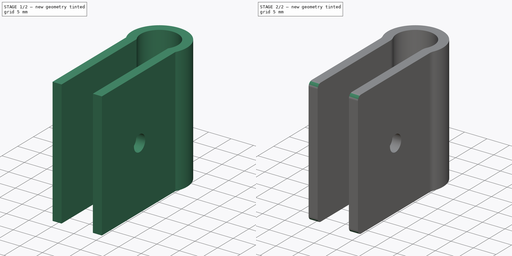
[diagram: build sequence overview — one tinted view per stage of 2, left to right]
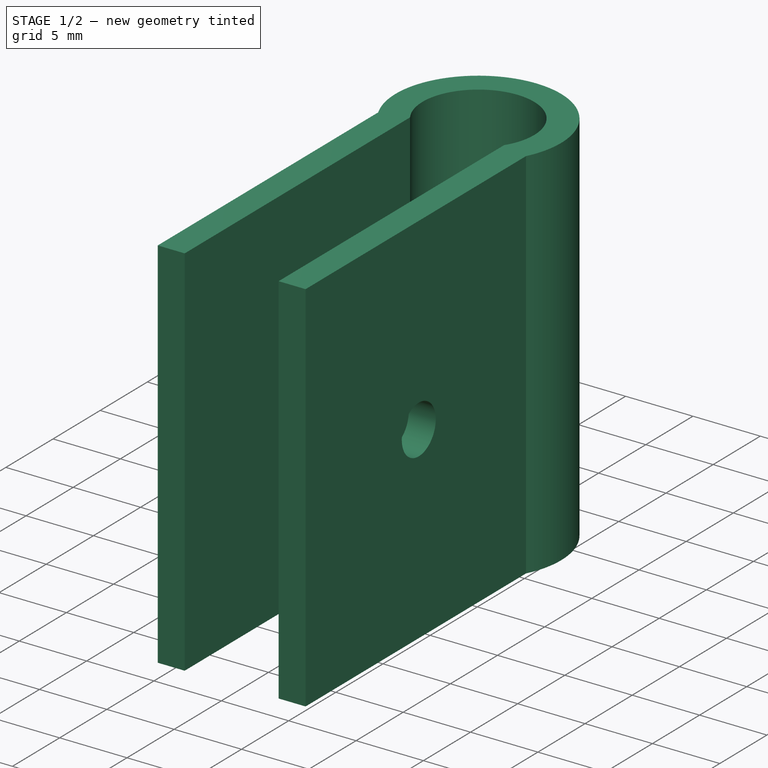
[diagram: stage 1 of 2 — iso view after this stage's code; geometry added in this stage tinted green]
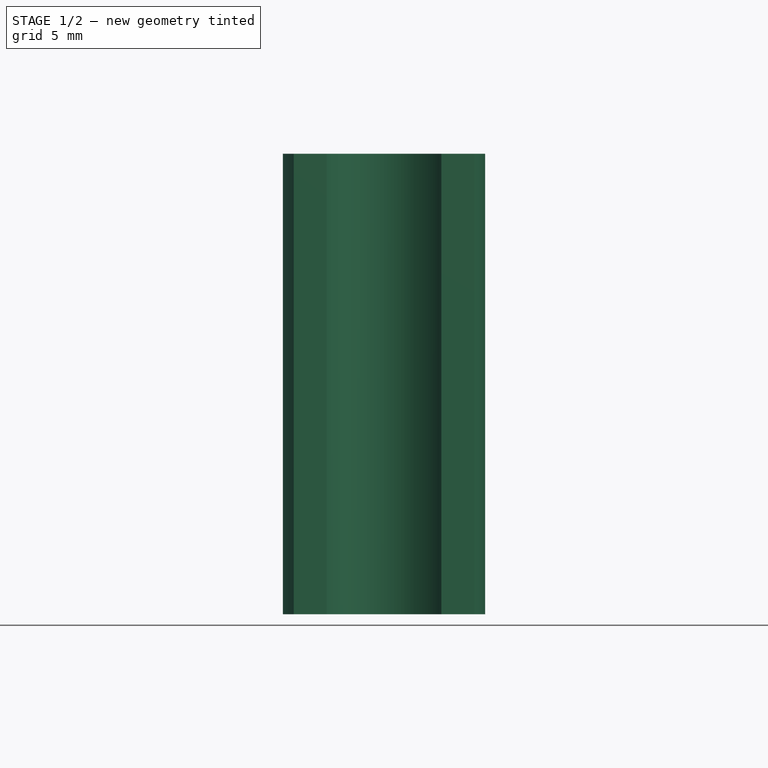
[diagram: stage 1 of 2 — front view after this stage's code; geometry added in this stage tinted green]
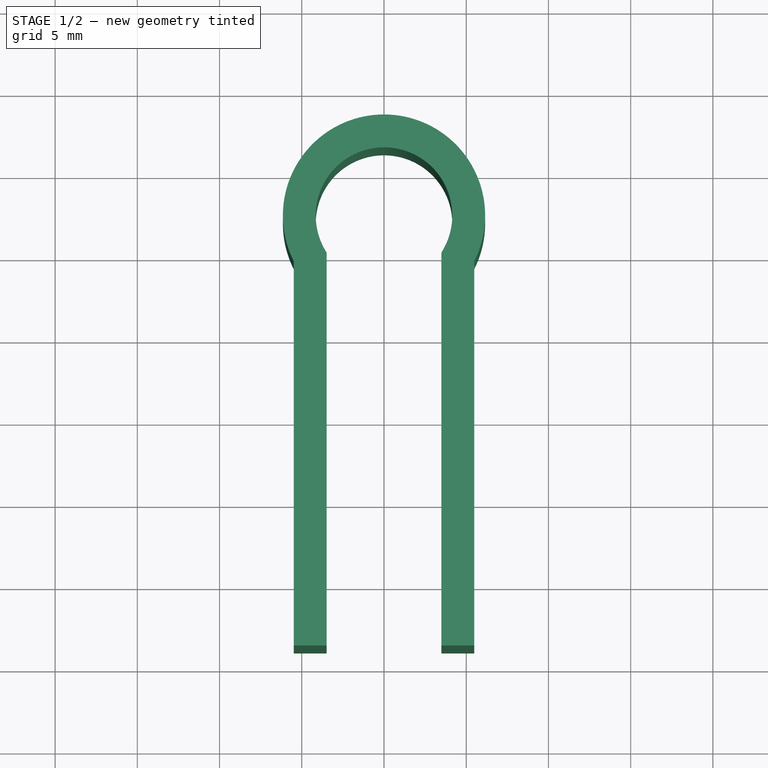
[diagram: stage 1 of 2 — top view after this stage's code; geometry added in this stage tinted green]
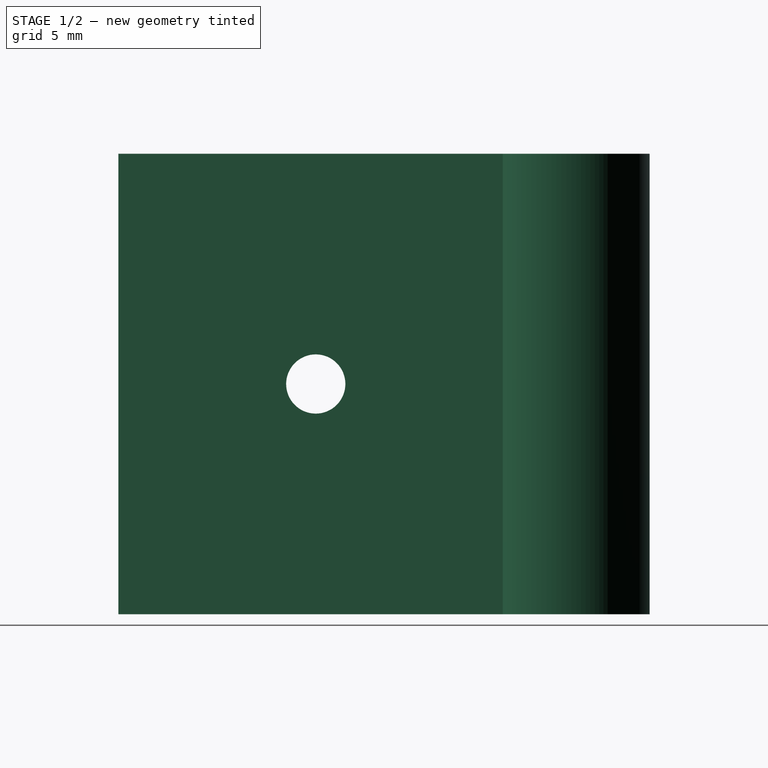
[diagram: stage 1 of 2 — right view after this stage's code; geometry added in this stage tinted green]
FCSTD DOCUMENT  (FreeCAD 0.18.3R)
Label: smoothrodclamp
License: All rights reserved
LicenseURL: http://en.wikipedia.org/wiki/All_rights_reserved
objects: Sketcher::SketchObject×2, PartDesign::Fillet×2, PartDesign::Pad×1, PartDesign::Pocket×1, PartDesign::Body×1, App::Part×1
note: 9 computed .brp shape members not serialized (recipe doc carries the construction recipe); baked Part::Feature solids carry a one-line shape summary decoded from their .brp

FEATURE [Sketcher::SketchObject] Sketch  label="clamp"
  MapMode = 5
  Support = -> [XY_Plane001]
  sketch-geometry (13):
    g0: ArcOfCircle CenterX=0 CenterY=2.25 CenterZ=0 NormalX=0 NormalY=0 NormalZ=1 AngleXU=0 Radius=4.15 StartAngle=5.71017 EndAngle=9.99779
    g1: ArcOfCircle CenterX=0 CenterY=2.25 CenterZ=0 NormalX=0 NormalY=0 NormalZ=1 AngleXU=0 Radius=6.15 StartAngle=5.81461 EndAngle=9.89335
    g2: LineSegment StartX=-5.48712 StartY=-0.527413 StartZ=0 EndX=-5.48712 EndY=-23.9 EndZ=0
    g3: LineSegment StartX=-5.48712 StartY=-23.9 StartZ=0 EndX=-3.48712 EndY=-23.9 EndZ=0
    g4: LineSegment StartX=-3.48712 StartY=-23.9 StartZ=0 EndX=-3.48712 EndY=0 EndZ=0
    g5: LineSegment StartX=3.48712 StartY=-4e-16 StartZ=0 EndX=3.48712 EndY=-23.9 EndZ=0
    g6: LineSegment StartX=3.48712 StartY=-23.9 StartZ=0 EndX=5.48712 EndY=-23.9 EndZ=0
    g7: LineSegment StartX=5.48712 StartY=-23.9 StartZ=0 EndX=5.48712 EndY=-0.527413 EndZ=0
    g8: LineSegment [constr] StartX=-3.48712 StartY=-23.9 StartZ=0 EndX=3.48712 EndY=-23.9 EndZ=0
    g9: ArcOfCircle [constr] CenterX=0 CenterY=2.25 CenterZ=0 NormalX=0 NormalY=0 NormalZ=1 AngleXU=0 Radius=4.15 StartAngle=3.71461 EndAngle=5.71017
    g10: LineSegment [constr] StartX=-3.48712 StartY=-1.9 StartZ=0 EndX=3.48712 EndY=-1.9 EndZ=0
    g11: LineSegment [constr] StartX=-3.48712 StartY=-11.9 StartZ=0 EndX=3.48712 EndY=-11.9 EndZ=0
    g12: LineSegment [constr] StartX=0 StartY=6.4 StartZ=0 EndX=0 EndY=8.4 EndZ=0
  constraints (44):
    c: PointOnObject(g0,g-2)
    c: PointOnObject(g0,g-1)
    c: PointOnObject(g0,g-1)
    c: Radius(g0) = 4.15
    c: Coincident(g1,g0)
    c: DistanceX(g0,g0) = 6.97424
    c: Coincident(g1,g2)
    c: Vertical(g2)
    c: Coincident(g2,g3)
    c: Horizontal(g3)
    c: Coincident(g3,g4)
    c: Coincident(g4,g0)
    c: Vertical(g4)
    c: Coincident(g0,g5)
    c: Vertical(g5)
    c: Coincident(g5,g6)
    c: Horizontal(g6)
    c: Coincident(g6,g7)
    c: Coincident(g7,g1)
    c: Vertical(g7)
    c: Coincident(g8,g3)
    c: Coincident(g8,g5)
    c: Horizontal(g8)
    c: PointOnObject(g10,g4)
    c: PointOnObject(g10,g5)
    c: Horizontal(g10)
    c: Tangent(g10,g9)
    c: DistanceY(g5,g10) = 22
    c: PointOnObject(g11,g4)
    c: Horizontal(g11)
    c: PointOnObject(g11,g5)
    c: DistanceY(g11,g10) = 10
    c: Coincident(g9,g0)
    c: Coincident(g0,g9)
    c: DistanceY(g-1,g0) = 2.25
    c: Equal(g9,g0)
    c: DistanceY(g11,g-1) = 11.9  'ScrewHoleOffset'
    c: PointOnObject(g12,g0)
    c: PointOnObject(g12,g1)
    c: Vertical(g12)
    c: PointOnObject(g12,g-2)
    c: Equal(g12,g3)
    c: Equal(g3,g6)
    c: DistanceY(g12,g12) = 2
FEATURE [PartDesign::Pad] Pad  label="clamp_"
  Length = 28
  Length2 = 100
  Profile = -> Sketch
  Type = 0
FEATURE [Sketcher::SketchObject] Sketch001
  MapMode = 5
  Placement = pos=(0,0,0) rot=(0.57735,0.57735,0.57735;2.0944rad)
  Support = -> [YZ_Plane001]
  expr: Constraints[2] = clamp_.Length / 2
  expr: Constraints[1] = Sketch.Constraints.ScrewHoleOffset
  expr: Constraints[0] = 1.8mm
  sketch-geometry (1):
    g0: Circle CenterX=-11.9 CenterY=14 CenterZ=0 NormalX=0 NormalY=0 NormalZ=1 AngleXU=0 Radius=1.8
  constraints (3):
    c: Radius(g0) = 1.8
    c: DistanceX(g0,g-1) = 11.9
    c: DistanceY(g-1,g0) = 14
FEATURE [PartDesign::Pocket] Pocket
  BaseFeature = -> Pad
  Length = 5
  Length2 = 100
  Midplane = true
  Profile = -> Sketch001
  Type = 1
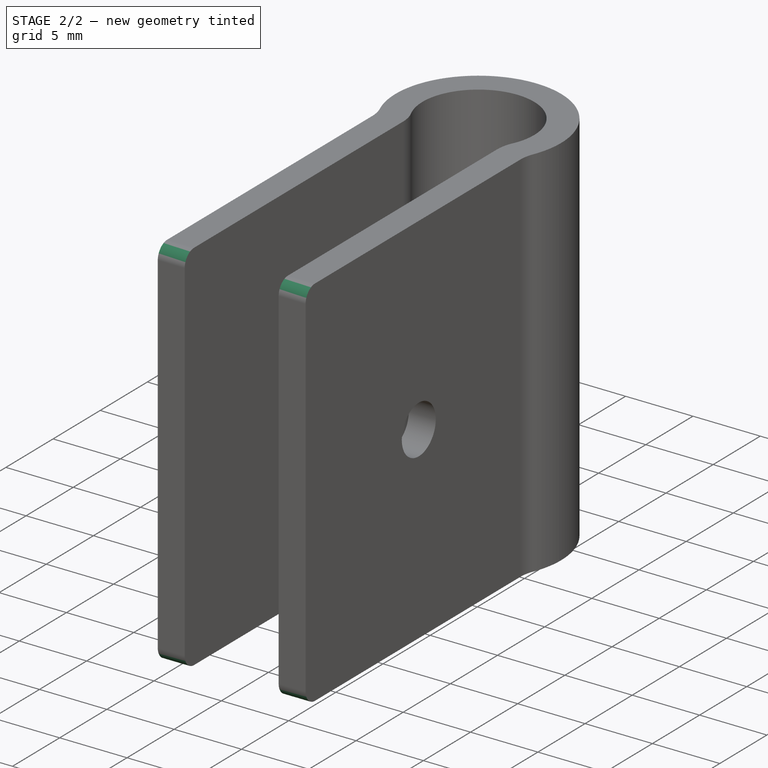
[diagram: stage 2 of 2 — iso view after this stage's code; geometry added in this stage tinted green]
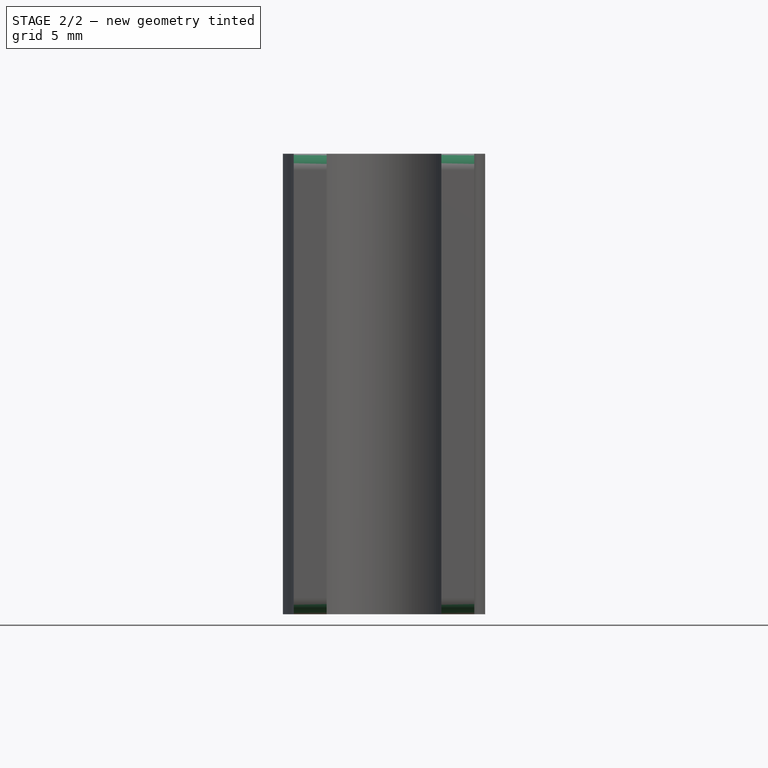
[diagram: stage 2 of 2 — front view after this stage's code; geometry added in this stage tinted green]
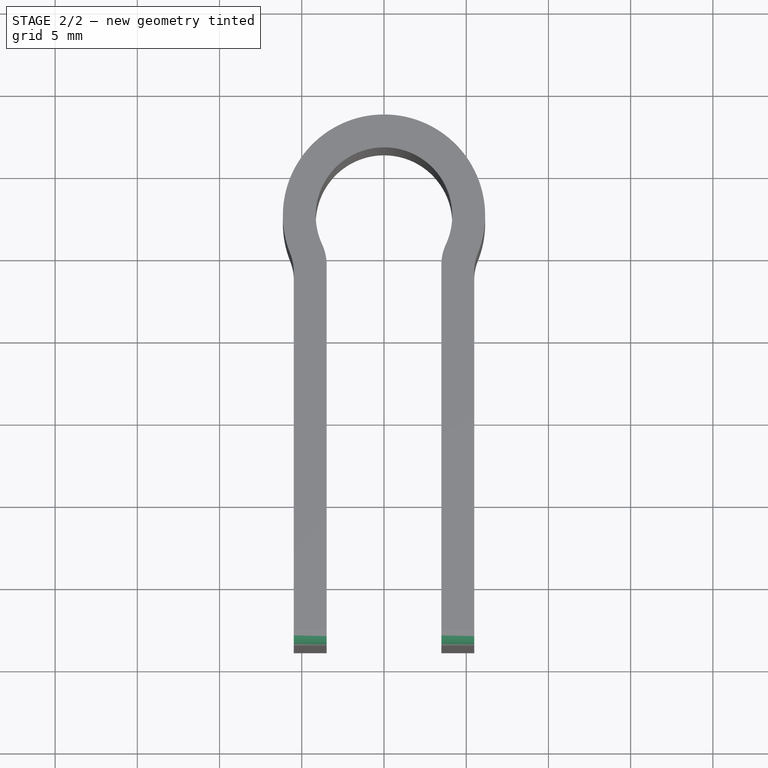
[diagram: stage 2 of 2 — top view after this stage's code; geometry added in this stage tinted green]
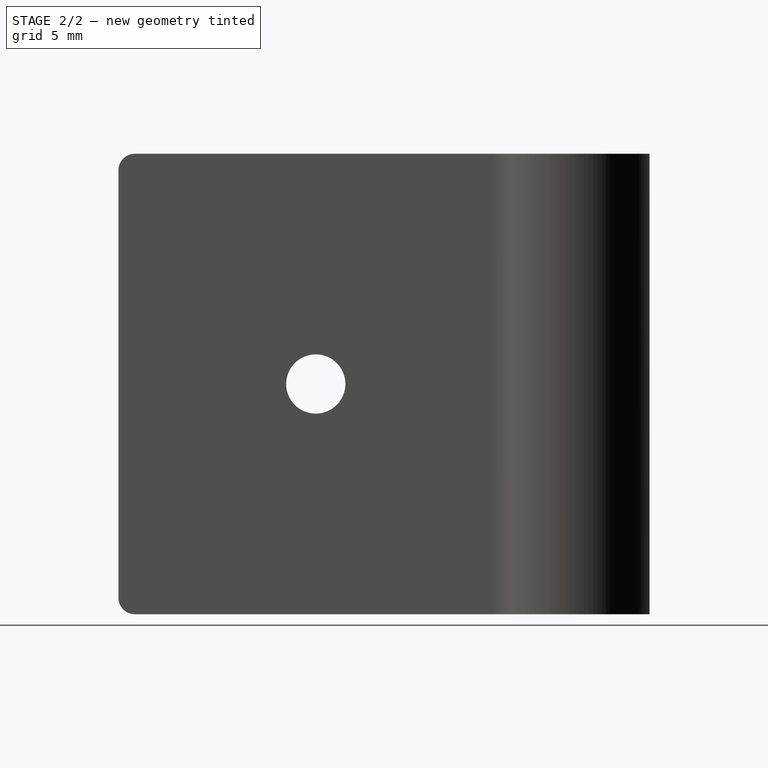
[diagram: stage 2 of 2 — right view after this stage's code; geometry added in this stage tinted green]
FEATURE [PartDesign::Fillet] Fillet
  Base = -> Pocket [Edge1,Edge2,Edge30,Edge29]
  BaseFeature = -> Pocket
  Radius = 3
FEATURE [PartDesign::Fillet] Fillet001
  Base = -> Fillet [Edge22,Edge23,Edge10,Edge9]
  BaseFeature = -> Fillet
  Radius = 1
FEATURE [PartDesign::Body] Body
  Group = -> [Sketch,Pad,Sketch001,Pocket,Fillet,Fillet001]
  Origin = -> Origin001
  Tip = -> Fillet001
FEATURE [App::Part] Part
  Group = -> [Body]
  Origin = -> Origin
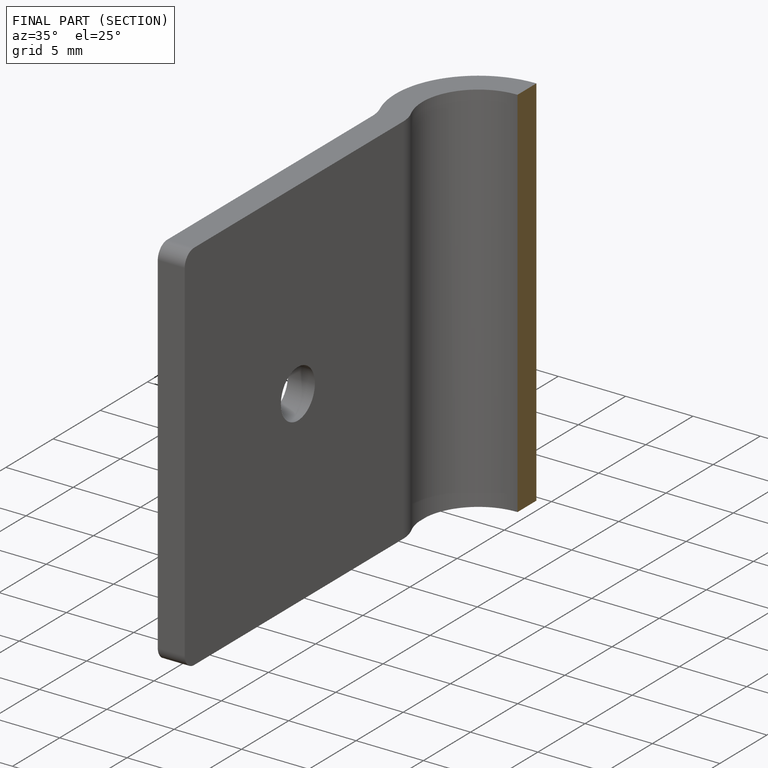
[diagram: finished part — half-section view (interior)]
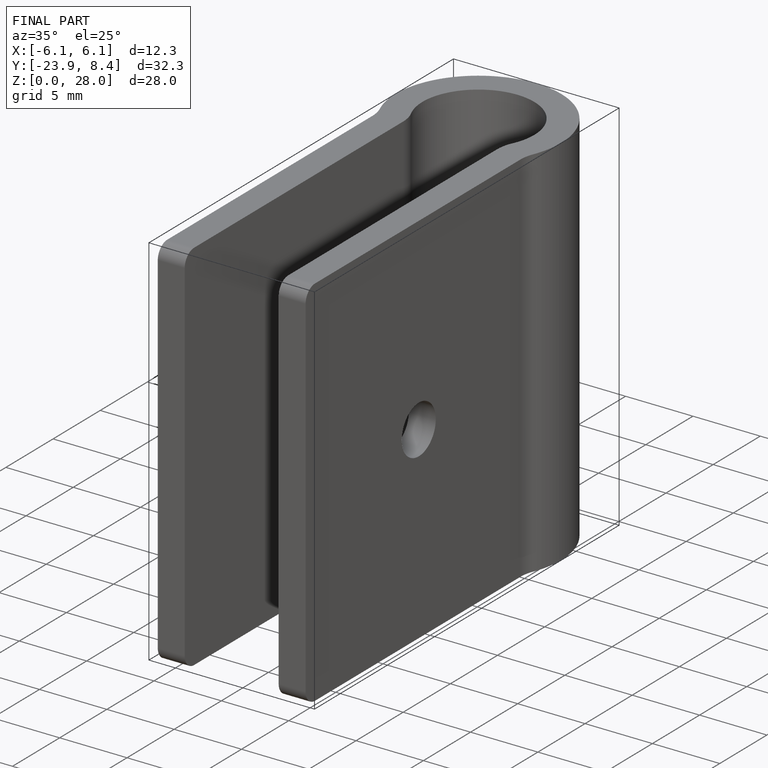
[diagram: finished part — iso view with bounding-box wireframe]
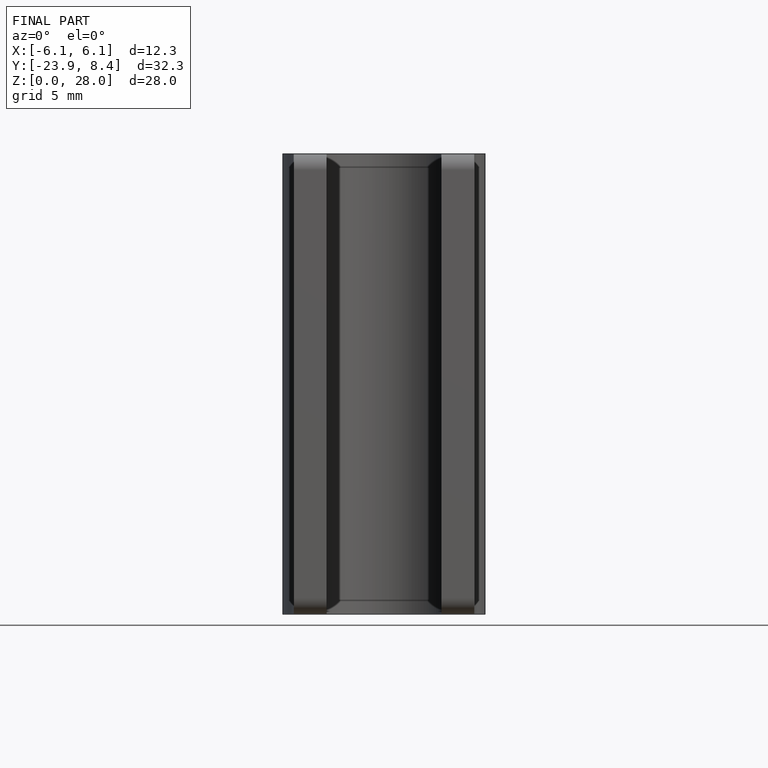
[diagram: finished part — front view with bounding-box wireframe]
